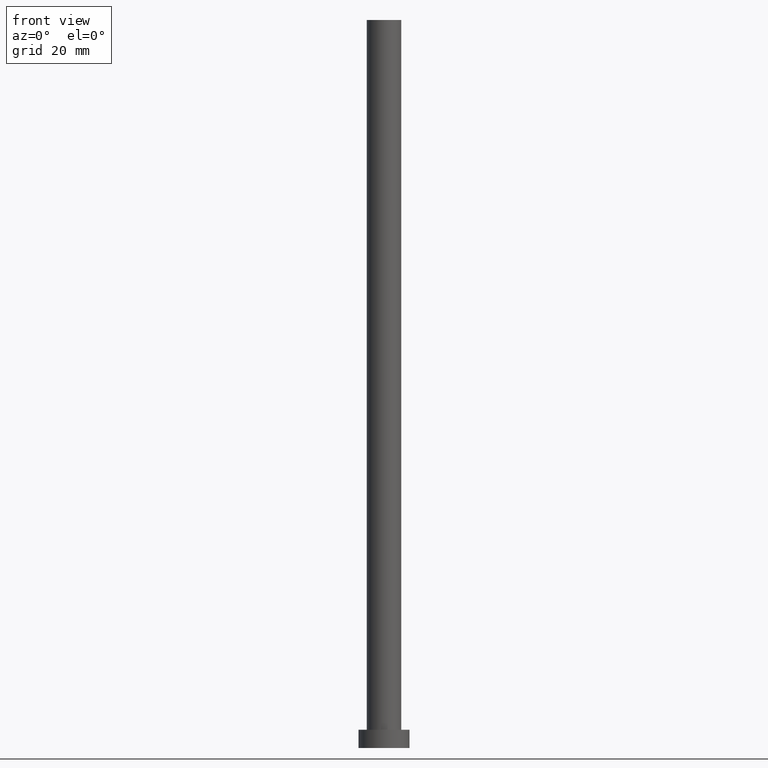
[diagram: clean part render]
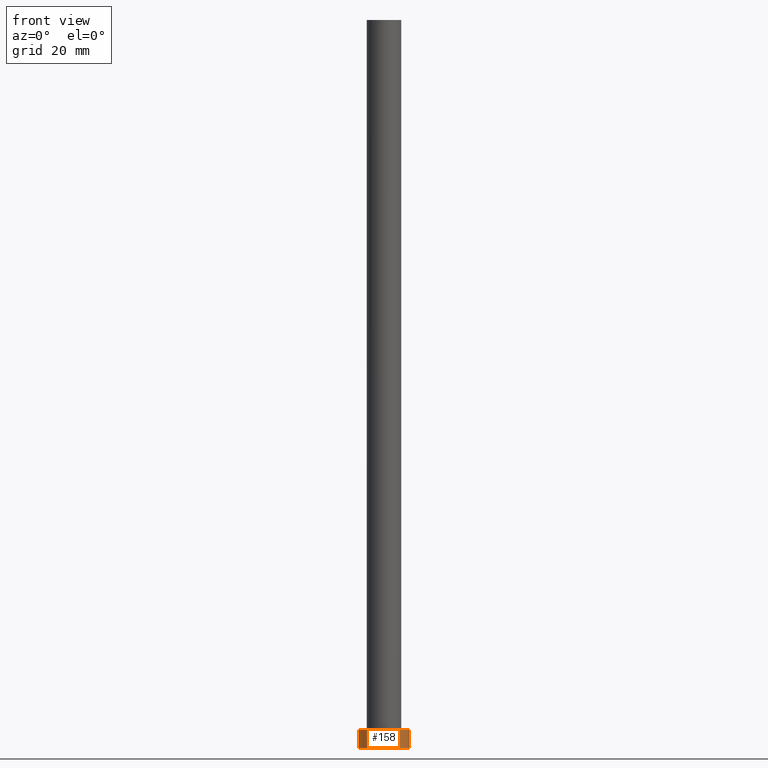
[diagram: same view with one face highlighted and labeled with its STEP entity id]
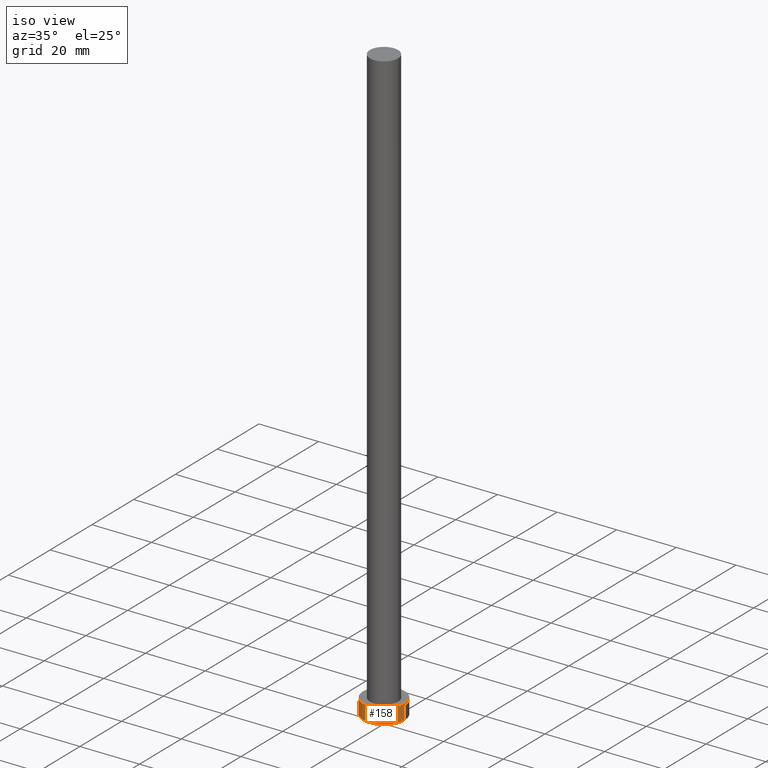
[diagram: same view with one face highlighted and labeled with its STEP entity id]
A machine part, front view. The second image highlights one B-rep face of the part: STEP entity #158.
A second angle (iso view) of the same face is appended — the face is thin or edge-on in the first view.
In plain terms, the highlighted cylindrical surface (edge-blend (fillet) strip) has radius 7 mm, axis along (-0, -0, -1).
Its self-contained STEP definition (entity closure, byte-faithful):
#6 = DIRECTION ( 'NONE',  ( -1.000000000000000000, 0.000000000000000000, 0.000000000000000000 ) ) ;
#7 = CARTESIAN_POINT ( 'NONE',  ( 0.000000000000000000, 0.000000000000000000, 5.000000000000000000 ) ) ;
#23 = VECTOR ( 'NONE', #39, 1000.000000000000000 ) ;
#31 = EDGE_CURVE ( 'NONE', #148, #254, #59, .T. ) ;
#34 = VERTEX_POINT ( 'NONE', #209 ) ;
#39 = DIRECTION ( 'NONE',  ( -0.000000000000000000, -0.000000000000000000, -1.000000000000000000 ) ) ;
#59 = CIRCLE ( 'NONE', #231, 7.000000000000000000 ) ;
#63 = CARTESIAN_POINT ( 'NONE',  ( 0.000000000000000000, 0.000000000000000000, 5.000000000000000000 ) ) ;
#70 = EDGE_CURVE ( 'NONE', #126, #254, #169, .T. ) ;
#71 = AXIS2_PLACEMENT_3D ( 'NONE', #63, #220, #6 ) ;
#73 = ORIENTED_EDGE ( 'NONE', *, *, #31, .T. ) ;
#75 = CARTESIAN_POINT ( 'NONE',  ( 7.000000000000000000, 8.572527594031473190E-16, 5.000000000000000000 ) ) ;
#81 = FACE_OUTER_BOUND ( 'NONE', #187, .T. ) ;
#86 = DIRECTION ( 'NONE',  ( 0.000000000000000000, 0.000000000000000000, 1.000000000000000000 ) ) ;
#110 = ORIENTED_EDGE ( 'NONE', *, *, #70, .F. ) ;
#112 = CARTESIAN_POINT ( 'NONE',  ( -7.000000000000000000, 0.000000000000000000, 5.000000000000000000 ) ) ;
#123 = CARTESIAN_POINT ( 'NONE',  ( 7.000000000000000000, 8.572527594031473190E-16, 5.000000000000000000 ) ) ;
#126 = VERTEX_POINT ( 'NONE', #123 ) ;
#138 = AXIS2_PLACEMENT_3D ( 'NONE', #7, #241, #176 ) ;
#148 = VERTEX_POINT ( 'NONE', #174 ) ;
#151 = LINE ( 'NONE', #112, #213 ) ;
#154 = CYLINDRICAL_SURFACE ( 'NONE', #71, 7.000000000000000000 ) ;
#158 = ADVANCED_FACE ( 'NONE', ( #81 ), #154, .T. ) ;
#165 = CARTESIAN_POINT ( 'NONE',  ( 0.000000000000000000, 0.000000000000000000, 0.000000000000000000 ) ) ;
#169 = LINE ( 'NONE', #75, #23 ) ;
#174 = CARTESIAN_POINT ( 'NONE',  ( -7.000000000000000000, 0.000000000000000000, 0.000000000000000000 ) ) ;
#176 = DIRECTION ( 'NONE',  ( 1.000000000000000000, 0.000000000000000000, 0.000000000000000000 ) ) ;
#185 = EDGE_CURVE ( 'NONE', #34, #126, #189, .T. ) ;
#187 = EDGE_LOOP ( 'NONE', ( #110, #214, #211, #73 ) ) ;
#189 = CIRCLE ( 'NONE', #138, 7.000000000000000000 ) ;
#209 = CARTESIAN_POINT ( 'NONE',  ( -7.000000000000000000, 0.000000000000000000, 5.000000000000000000 ) ) ;
#210 = EDGE_CURVE ( 'NONE', #34, #148, #151, .T. ) ;
#211 = ORIENTED_EDGE ( 'NONE', *, *, #210, .T. ) ;
#213 = VECTOR ( 'NONE', #217, 1000.000000000000000 ) ;
#214 = ORIENTED_EDGE ( 'NONE', *, *, #185, .F. ) ;
#217 = DIRECTION ( 'NONE',  ( -0.000000000000000000, -0.000000000000000000, -1.000000000000000000 ) ) ;
#220 = DIRECTION ( 'NONE',  ( -0.000000000000000000, -0.000000000000000000, -1.000000000000000000 ) ) ;
#231 = AXIS2_PLACEMENT_3D ( 'NONE', #165, #86, #232 ) ;
#232 = DIRECTION ( 'NONE',  ( 1.000000000000000000, 0.000000000000000000, 0.000000000000000000 ) ) ;
#241 = DIRECTION ( 'NONE',  ( 0.000000000000000000, 0.000000000000000000, 1.000000000000000000 ) ) ;
#248 = CARTESIAN_POINT ( 'NONE',  ( 7.000000000000000000, 8.572527594031473190E-16, 0.000000000000000000 ) ) ;
#254 = VERTEX_POINT ( 'NONE', #248 ) ;